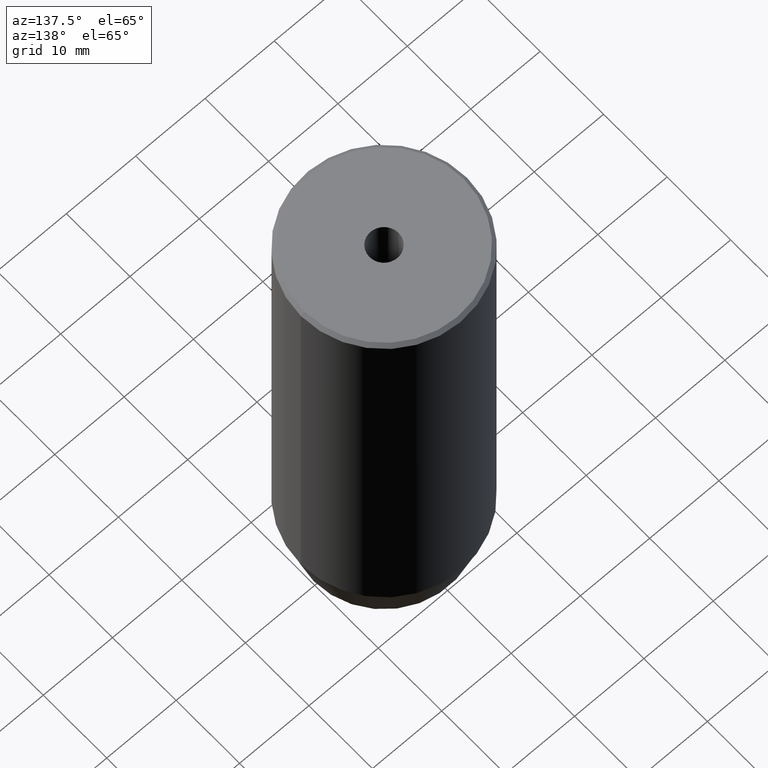
[diagram: clean part render]
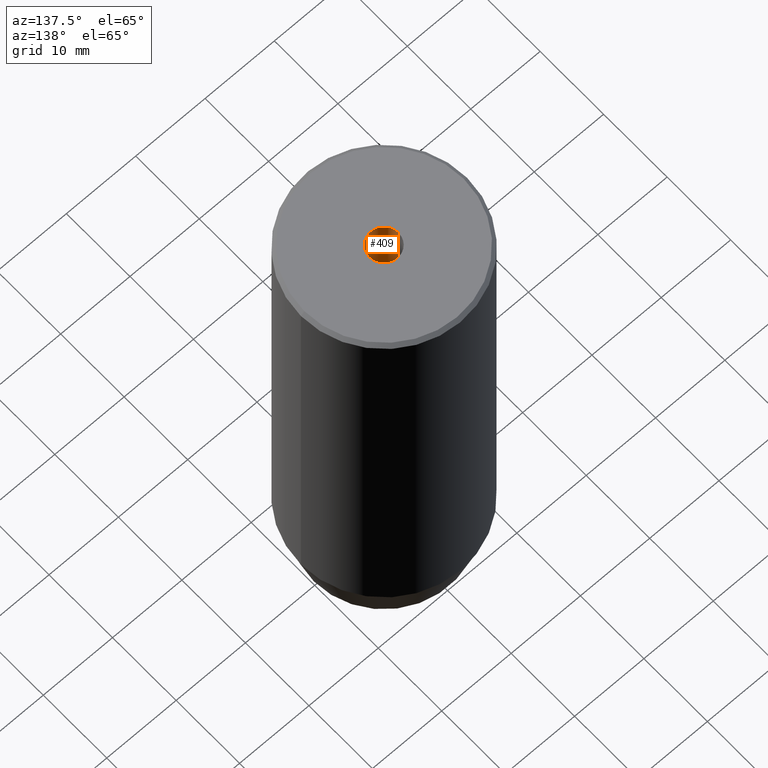
[diagram: same view with one face highlighted and labeled with its STEP entity id]
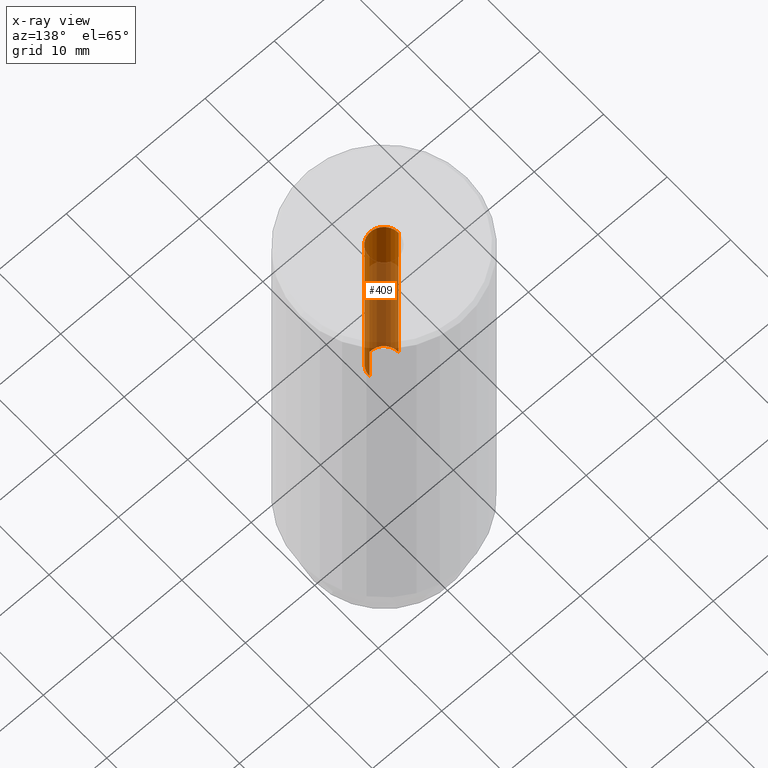
[diagram: x-ray of the same camera — body ghosted, the highlighted face saturated]
A machine part, auxiliary view. The second image highlights one B-rep face of the part: STEP entity #409.
The next image is the same camera in x-ray: the body ghosted, the highlighted face saturated — about 70% of this face is hidden behind the body in this view.
In plain terms, the highlighted cylindrical surface (edge-blend (fillet) strip) has radius 2.1 mm, axis along (-0, -0, 1).
Its self-contained STEP definition (entity closure, byte-faithful):
#30 = ORIENTED_EDGE ( 'NONE', *, *, #354, .F. ) ;
#63 = VECTOR ( 'NONE', #499, 1000.000000000000000 ) ;
#65 = VERTEX_POINT ( 'NONE', #71 ) ;
#67 = DIRECTION ( 'NONE',  ( 1.000000000000000000, 0.000000000000000000, 0.000000000000000000 ) ) ;
#69 = CARTESIAN_POINT ( 'NONE',  ( 0.000000000000000000, 0.000000000000000000, 0.000000000000000000 ) ) ;
#71 = CARTESIAN_POINT ( 'NONE',  ( 2.099999999999998757, 0.000000000000000000, -1.990051048614449116E-16 ) ) ;
#86 = AXIS2_PLACEMENT_3D ( 'NONE', #234, #460, #415 ) ;
#93 = DIRECTION ( 'NONE',  ( -0.000000000000000000, -0.000000000000000000, 1.000000000000000000 ) ) ;
#149 = VERTEX_POINT ( 'NONE', #359 ) ;
#156 = EDGE_CURVE ( 'NONE', #542, #65, #510, .T. ) ;
#157 = EDGE_CURVE ( 'NONE', #149, #65, #318, .T. ) ;
#162 = CARTESIAN_POINT ( 'NONE',  ( -2.099999999999998757, 2.571758278209440478E-16, -1.990051048614449116E-16 ) ) ;
#176 = CARTESIAN_POINT ( 'NONE',  ( 0.000000000000000000, 0.000000000000000000, -1.990051048614449116E-16 ) ) ;
#188 = ORIENTED_EDGE ( 'NONE', *, *, #456, .T. ) ;
#234 = CARTESIAN_POINT ( 'NONE',  ( 0.000000000000000000, 0.000000000000000000, -30.00000000000000000 ) ) ;
#251 = ORIENTED_EDGE ( 'NONE', *, *, #157, .F. ) ;
#254 = DIRECTION ( 'NONE',  ( -0.000000000000000000, -0.000000000000000000, 1.000000000000000000 ) ) ;
#264 = VERTEX_POINT ( 'NONE', #471 ) ;
#282 = AXIS2_PLACEMENT_3D ( 'NONE', #69, #254, #67 ) ;
#297 = EDGE_LOOP ( 'NONE', ( #30, #188, #565, #251 ) ) ;
#299 = FACE_OUTER_BOUND ( 'NONE', #297, .T. ) ;
#304 = DIRECTION ( 'NONE',  ( -0.000000000000000000, -0.000000000000000000, 1.000000000000000000 ) ) ;
#306 = CIRCLE ( 'NONE', #86, 2.099999999999994760 ) ;
#313 = AXIS2_PLACEMENT_3D ( 'NONE', #176, #93, #407 ) ;
#315 = VECTOR ( 'NONE', #304, 1000.000000000000000 ) ;
#318 = LINE ( 'NONE', #449, #63 ) ;
#354 = EDGE_CURVE ( 'NONE', #264, #149, #306, .T. ) ;
#359 = CARTESIAN_POINT ( 'NONE',  ( 2.099999999999994760, 0.000000000000000000, -30.00000000000000000 ) ) ;
#384 = CYLINDRICAL_SURFACE ( 'NONE', #282, 2.099999999999996980 ) ;
#407 = DIRECTION ( 'NONE',  ( 1.000000000000000000, 0.000000000000000000, 0.000000000000000000 ) ) ;
#409 = ADVANCED_FACE ( 'NONE', ( #299 ), #384, .F. ) ;
#415 = DIRECTION ( 'NONE',  ( 1.000000000000000000, 0.000000000000000000, 0.000000000000000000 ) ) ;
#449 = CARTESIAN_POINT ( 'NONE',  ( 2.099999999999996980, 0.000000000000000000, 0.000000000000000000 ) ) ;
#456 = EDGE_CURVE ( 'NONE', #264, #542, #493, .T. ) ;
#460 = DIRECTION ( 'NONE',  ( -0.000000000000000000, -0.000000000000000000, 1.000000000000000000 ) ) ;
#471 = CARTESIAN_POINT ( 'NONE',  ( -2.099999999999994760, 2.571758278209435054E-16, -30.00000000000000000 ) ) ;
#493 = LINE ( 'NONE', #536, #315 ) ;
#499 = DIRECTION ( 'NONE',  ( -0.000000000000000000, -0.000000000000000000, 1.000000000000000000 ) ) ;
#510 = CIRCLE ( 'NONE', #313, 2.099999999999998757 ) ;
#536 = CARTESIAN_POINT ( 'NONE',  ( -2.099999999999996980, 2.571758278209438013E-16, 0.000000000000000000 ) ) ;
#542 = VERTEX_POINT ( 'NONE', #162 ) ;
#565 = ORIENTED_EDGE ( 'NONE', *, *, #156, .T. ) ;